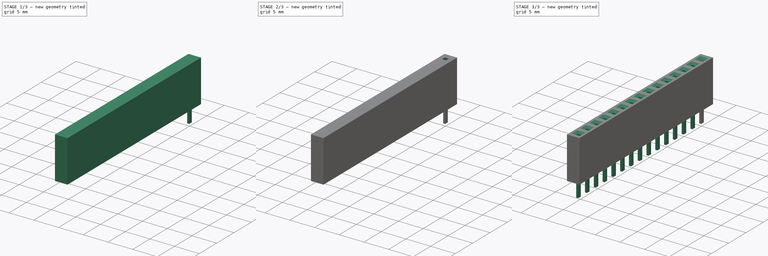
[diagram: build sequence overview — one tinted view per stage of 3, left to right]
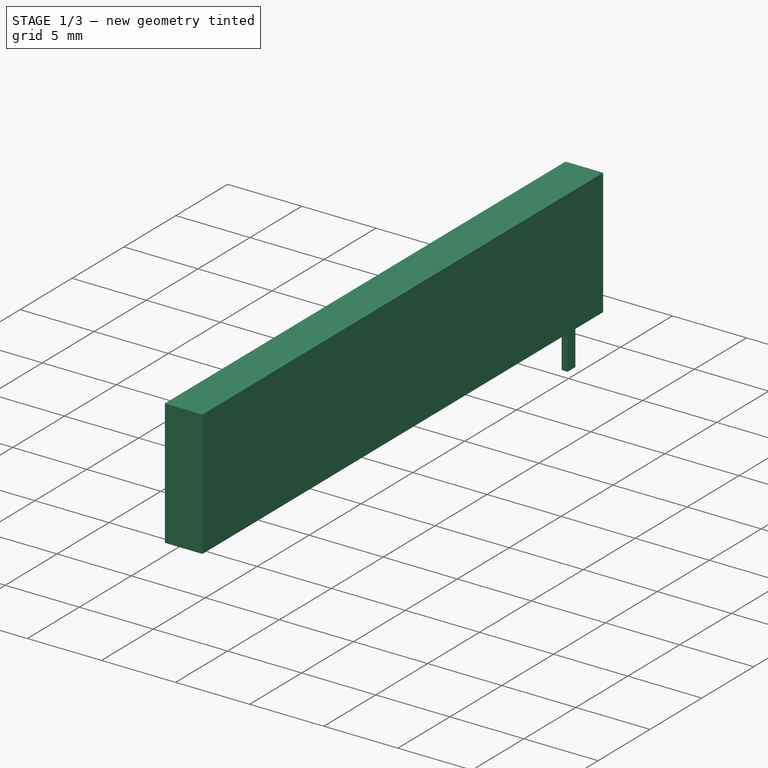
[diagram: stage 1 of 3 — iso view after this stage's code; geometry added in this stage tinted green]
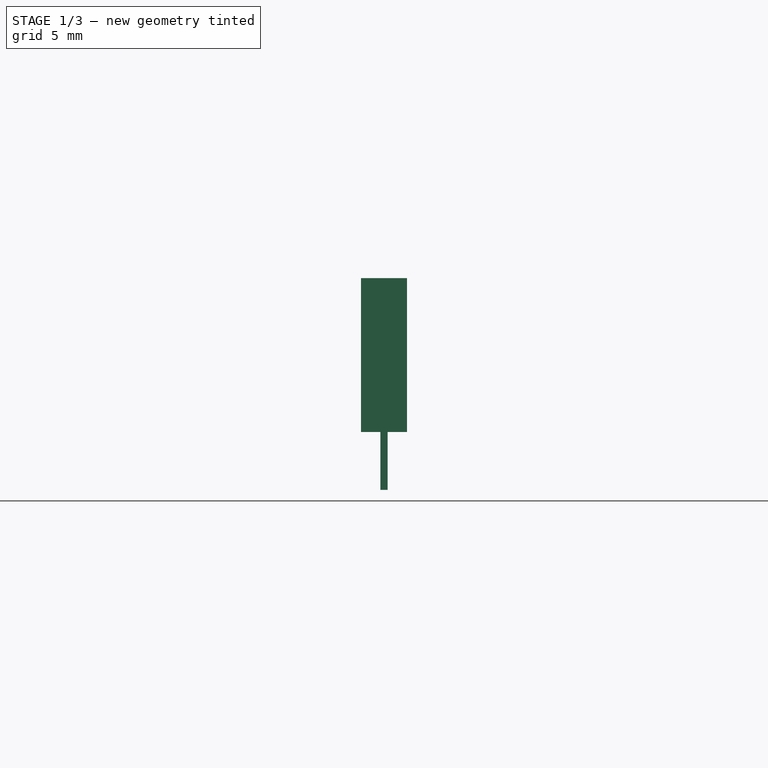
[diagram: stage 1 of 3 — front view after this stage's code; geometry added in this stage tinted green]
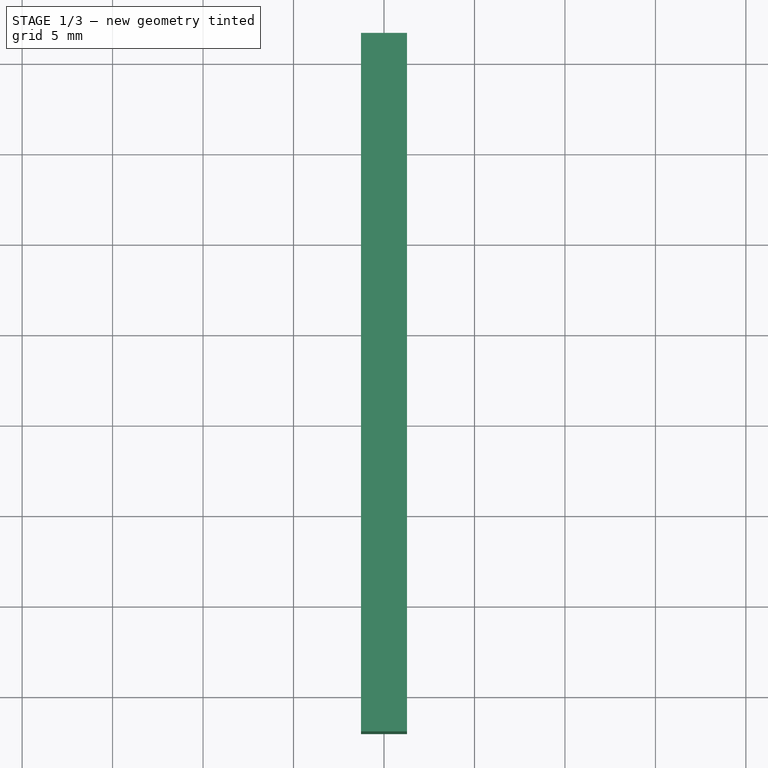
[diagram: stage 1 of 3 — top view after this stage's code; geometry added in this stage tinted green]
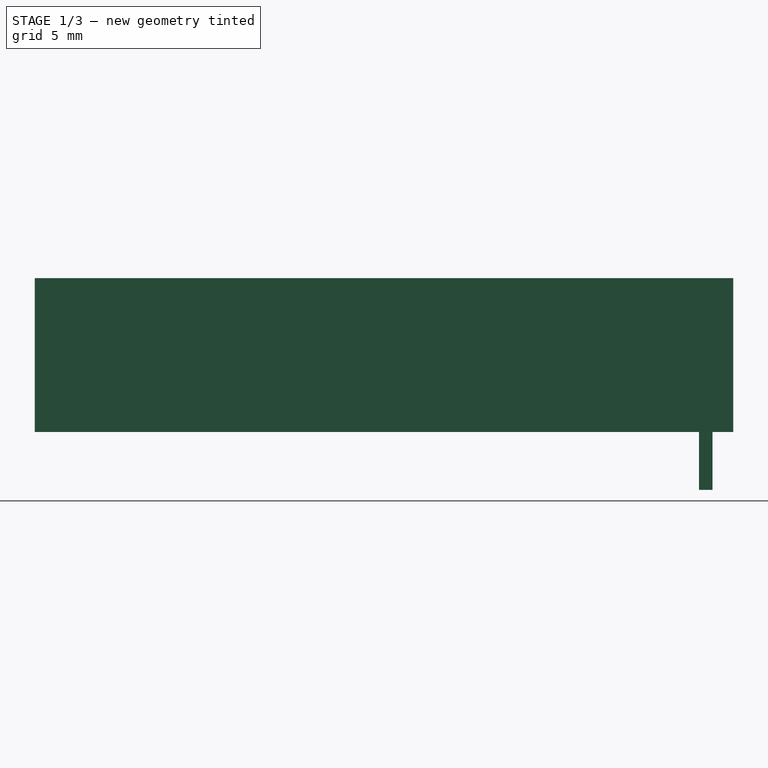
[diagram: stage 1 of 3 — right view after this stage's code; geometry added in this stage tinted green]
FCSTD DOCUMENT  (FreeCAD 0.21R33668 +26 (Git))
Label: PPPC151LFBN-RC
License: All rights reserved
LicenseURL: http://en.wikipedia.org/wiki/All_rights_reserved
objects: Sketcher::SketchObject×3, PartDesign::Pad×2, PartDesign::Pocket×1, PartDesign::Chamfer×1, PartDesign::LinearPattern×1, PartDesign::Body×1
note: 13 computed .brp shape members not serialized (recipe doc carries the construction recipe); baked Part::Feature solids carry a one-line shape summary decoded from their .brp

FEATURE [Sketcher::SketchObject] Sketch
  FullyConstrained = true
  MapMode = 5
  Support = -> [XY_Plane]
  sketch-geometry (4):
    g0: LineSegment StartX=-1.27 StartY=1.524 StartZ=0 EndX=1.27 EndY=1.524 EndZ=0
    g1: LineSegment StartX=1.27 StartY=1.524 StartZ=0 EndX=1.27 EndY=-37.084 EndZ=0
    g2: LineSegment StartX=1.27 StartY=-37.084 StartZ=0 EndX=-1.27 EndY=-37.084 EndZ=0
    g3: LineSegment StartX=-1.27 StartY=-37.084 StartZ=0 EndX=-1.27 EndY=1.524 EndZ=0
  constraints (11):
    c: Coincident(g0,g1)
    c: Coincident(g1,g2)
    c: Coincident(g2,g3)
    c: Coincident(g3,g0)
    c: Horizontal(g2)
    c: Vertical(g1)
    c: Vertical(g3)
    c: Symmetric(g0,g0,g-2)
    c: DistanceY(g-1,g0) = 1.524
    c: DistanceX(g0,g0) = 2.54
    c: DistanceY(g1,g1) = 38.608
FEATURE [PartDesign::Pad] Pad
  Direction = (0,0,1)
  Length = 8.5
  Length2 = 10
  Profile = -> Sketch
  ReferenceAxis = -> Sketch [N_Axis]
  Type = 0
FEATURE [Sketcher::SketchObject] Sketch001
  FullyConstrained = true
  MapMode = 5
  Placement = pos=(0,0,0) rot=(1,0,0;3.14159rad)
  Support = -> [Pad]
  sketch-geometry (4):
    g0: LineSegment StartX=-0.2 StartY=0.375 StartZ=0 EndX=0.2 EndY=0.375 EndZ=0
    g1: LineSegment StartX=0.2 StartY=0.375 StartZ=0 EndX=0.2 EndY=-0.375 EndZ=0
    g2: LineSegment StartX=0.2 StartY=-0.375 StartZ=0 EndX=-0.2 EndY=-0.375 EndZ=0
    g3: LineSegment StartX=-0.2 StartY=-0.375 StartZ=0 EndX=-0.2 EndY=0.375 EndZ=0
  constraints (11):
    c: Coincident(g0,g1)
    c: Coincident(g1,g2)
    c: Coincident(g2,g3)
    c: Coincident(g3,g0)
    c: Horizontal(g0)
    c: Horizontal(g2)
    c: Vertical(g1)
    c: Vertical(g3)
    c: Symmetric(g0,g1,g-1)
    c: DistanceX(g2,g2) = 0.4
    c: DistanceY(g1,g1) = 0.75
FEATURE [PartDesign::Pad] Pad001
  BaseFeature = -> Pad
  Direction = (0,0,-1)
  Length = 3.2
  Length2 = 10
  Profile = -> Sketch001
  ReferenceAxis = -> Sketch001 [N_Axis]
  Type = 0
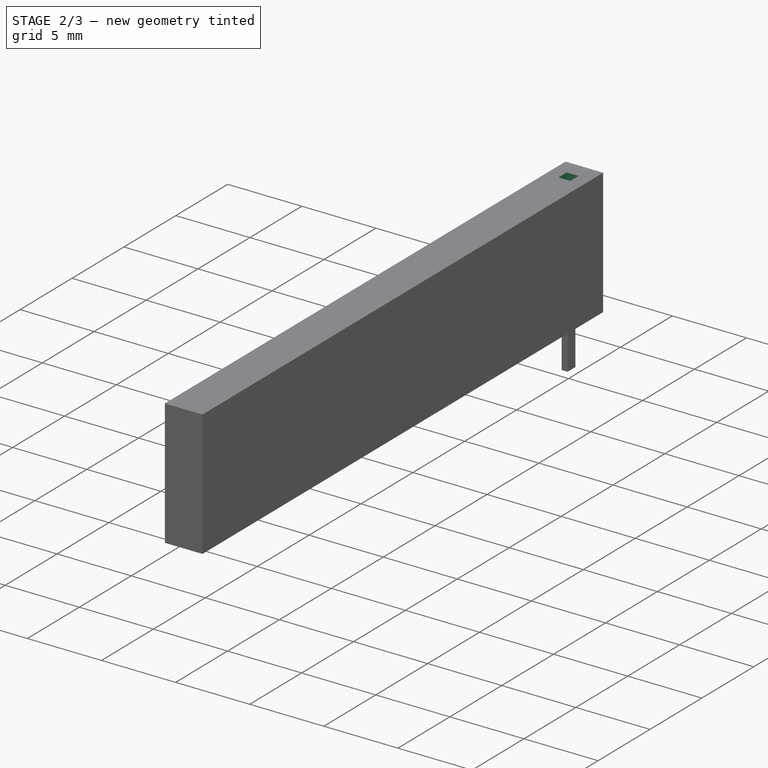
[diagram: stage 2 of 3 — iso view after this stage's code; geometry added in this stage tinted green]
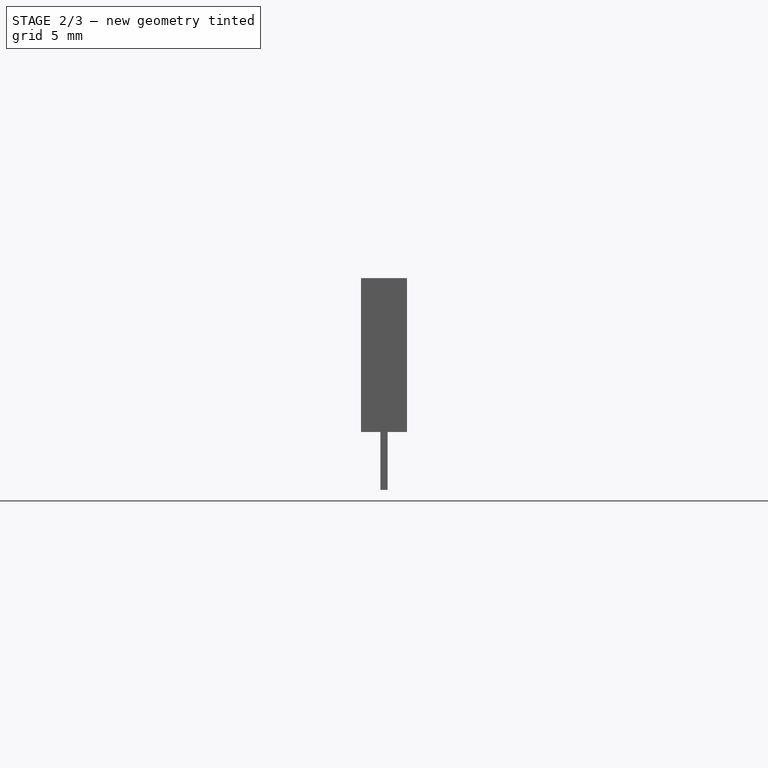
[diagram: stage 2 of 3 — front view after this stage's code; geometry added in this stage tinted green]
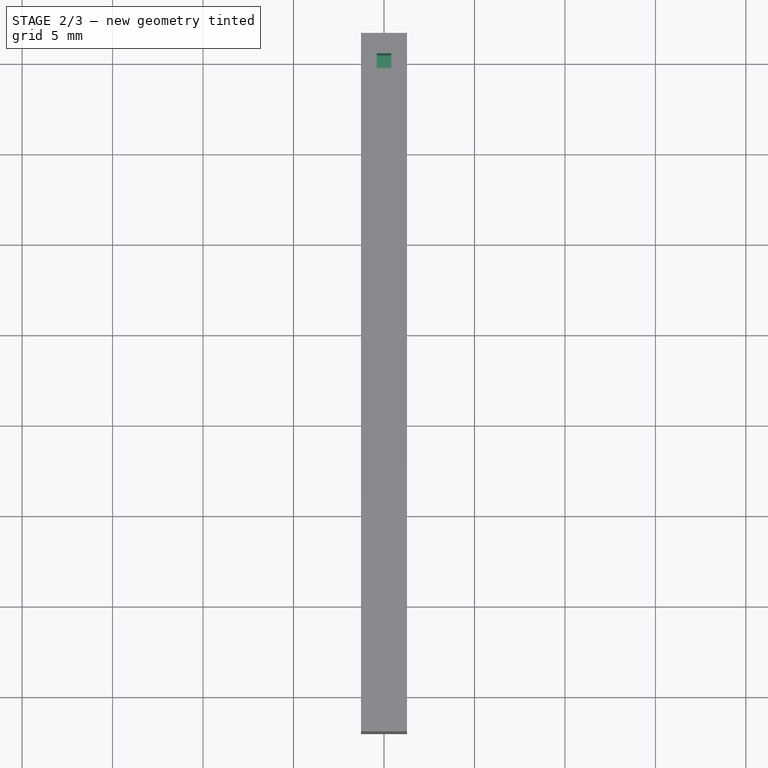
[diagram: stage 2 of 3 — top view after this stage's code; geometry added in this stage tinted green]
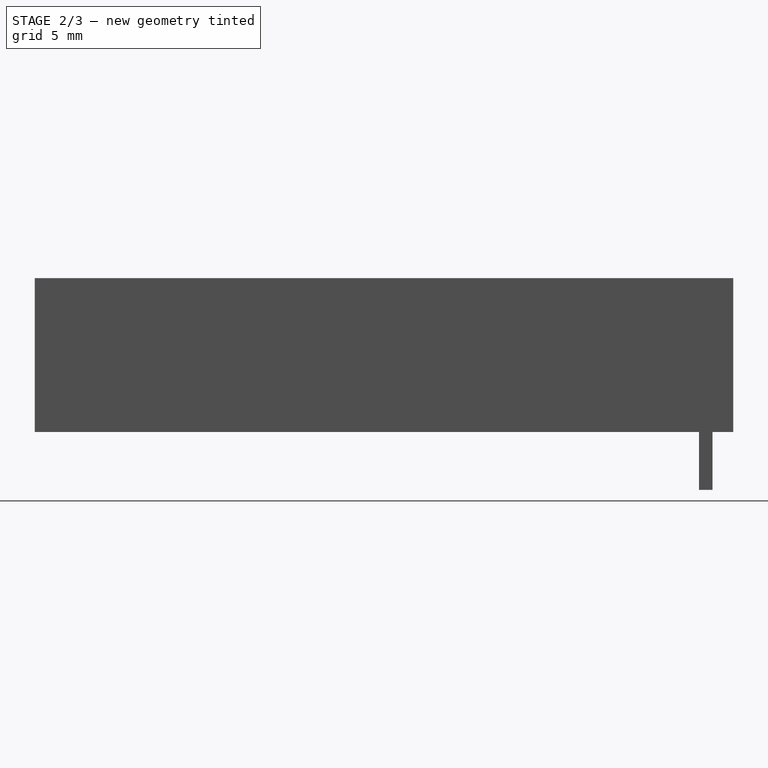
[diagram: stage 2 of 3 — right view after this stage's code; geometry added in this stage tinted green]
FEATURE [Sketcher::SketchObject] Sketch002
  FullyConstrained = true
  MapMode = 5
  Placement = pos=(0,0,8.5) rot=(0,0,1;0rad)
  Support = -> [Pad001]
  sketch-geometry (4):
    g0: LineSegment StartX=-0.4 StartY=0.4 StartZ=0 EndX=0.4 EndY=0.4 EndZ=0
    g1: LineSegment StartX=0.4 StartY=0.4 StartZ=0 EndX=0.4 EndY=-0.4 EndZ=0
    g2: LineSegment StartX=0.4 StartY=-0.4 StartZ=0 EndX=-0.4 EndY=-0.4 EndZ=0
    g3: LineSegment StartX=-0.4 StartY=-0.4 StartZ=0 EndX=-0.4 EndY=0.4 EndZ=0
  constraints (11):
    c: Coincident(g0,g1)
    c: Coincident(g1,g2)
    c: Coincident(g2,g3)
    c: Coincident(g3,g0)
    c: Horizontal(g0)
    c: Horizontal(g2)
    c: Vertical(g1)
    c: Vertical(g3)
    c: Symmetric(g0,g1,g-1)
    c: Equal(g0,g1)
    c: DistanceY(g1,g1) = 0.8
FEATURE [PartDesign::Pocket] Pocket
  BaseFeature = -> Pad001
  Direction = (0,0,-1)
  Length = 7
  Length2 = 5
  Profile = -> Sketch002
  ReferenceAxis = -> Sketch002 [N_Axis]
  Type = 0
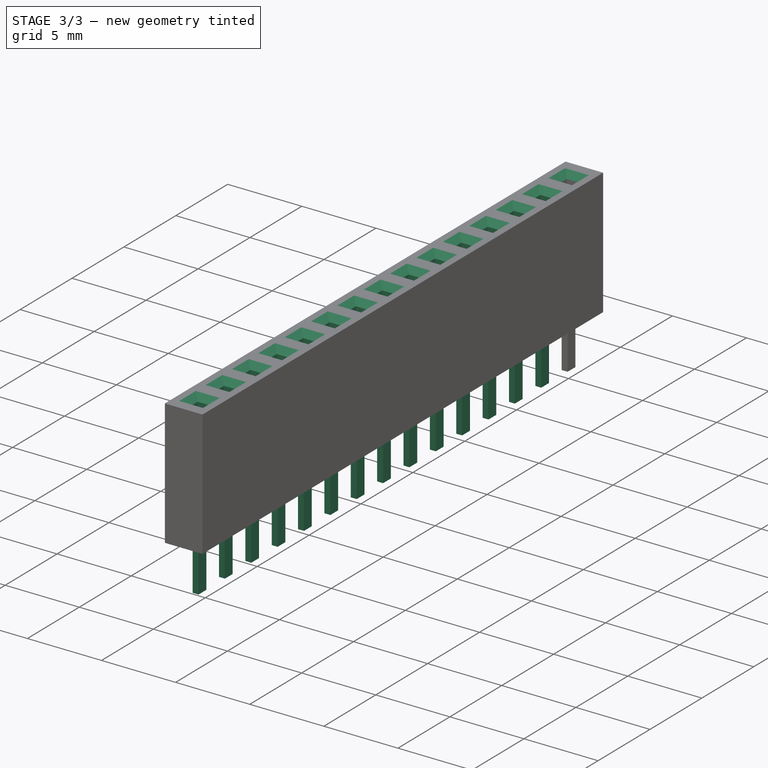
[diagram: stage 3 of 3 — iso view after this stage's code; geometry added in this stage tinted green]
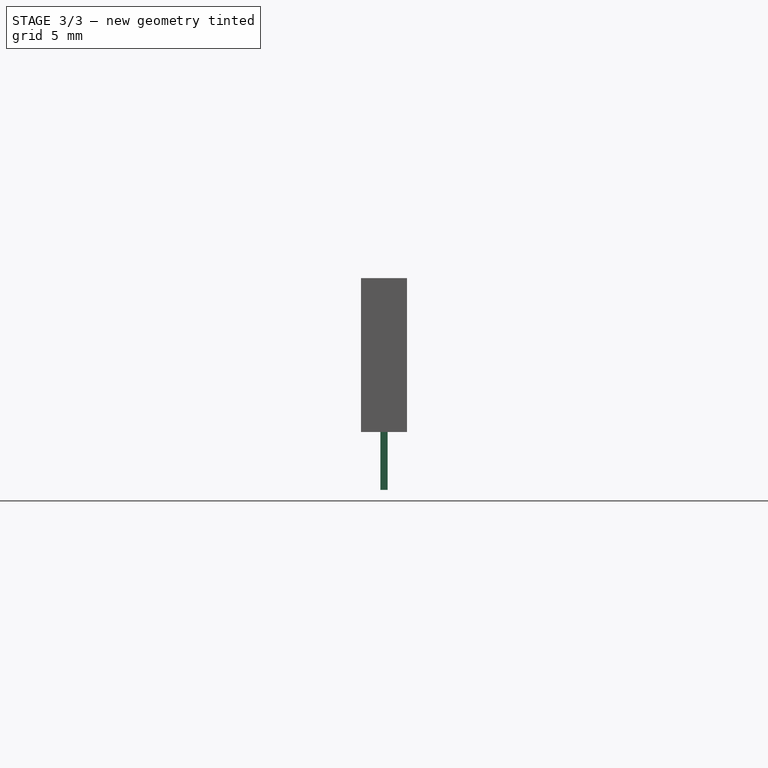
[diagram: stage 3 of 3 — front view after this stage's code; geometry added in this stage tinted green]
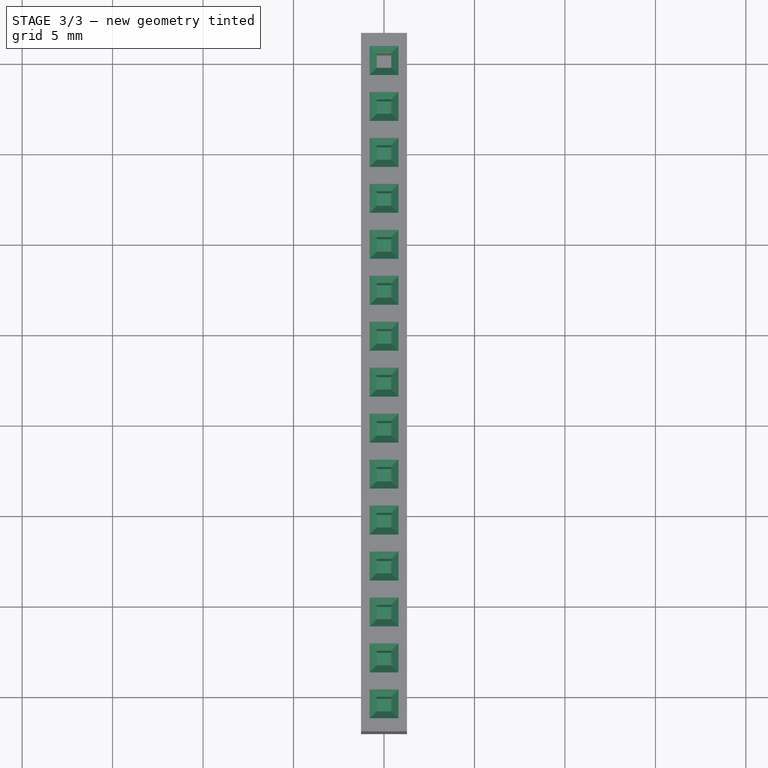
[diagram: stage 3 of 3 — top view after this stage's code; geometry added in this stage tinted green]
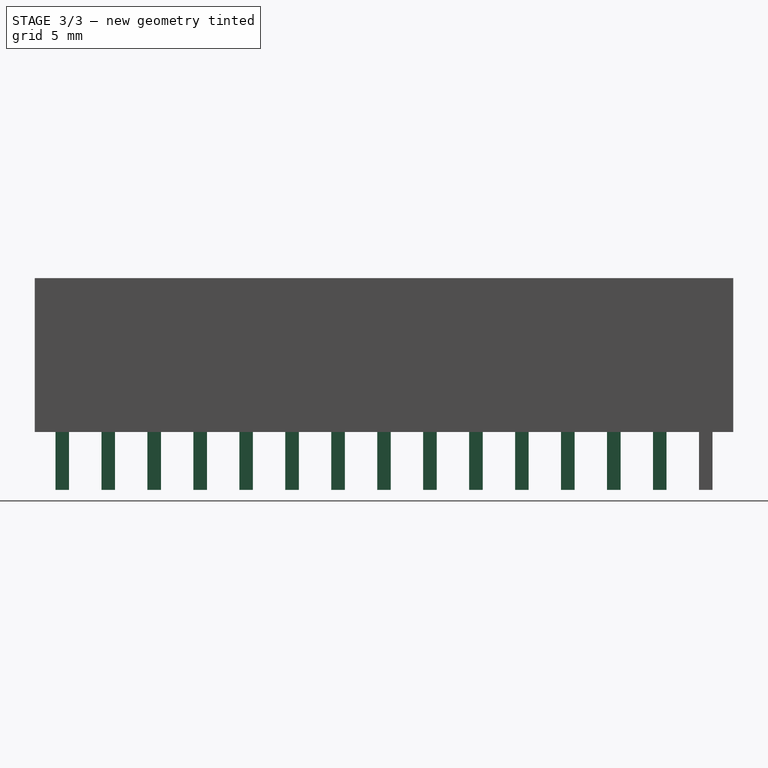
[diagram: stage 3 of 3 — right view after this stage's code; geometry added in this stage tinted green]
FEATURE [PartDesign::Chamfer] Chamfer
  Angle = 45
  Base = -> Pocket [Edge17,Edge20,Edge19,Edge18]
  BaseFeature = -> Pocket
  ChamferType = 0
  FlipDirection = false
  Size = 0.4
  Size2 = 1
  SupportTransform = false
  UseAllEdges = false
FEATURE [PartDesign::LinearPattern] LinearPattern
  BaseFeature = -> Chamfer
  Direction = -> Sketch001 [V_Axis]
  Length = 35.56
  Occurrences = 15
  Originals = -> [Pad001,Pocket,Chamfer]
FEATURE [PartDesign::Body] Body
  Group = -> [Sketch,Pad,Sketch001,Pad001,Sketch002,Pocket,Chamfer,LinearPattern]
  Origin = -> Origin
  Tip = -> LinearPattern
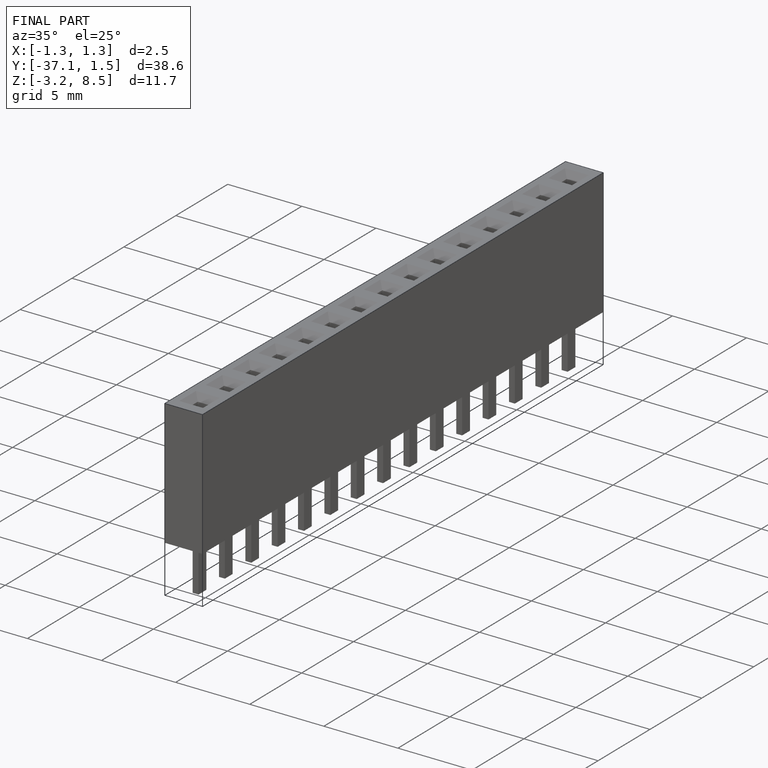
[diagram: finished part — iso view with bounding-box wireframe]
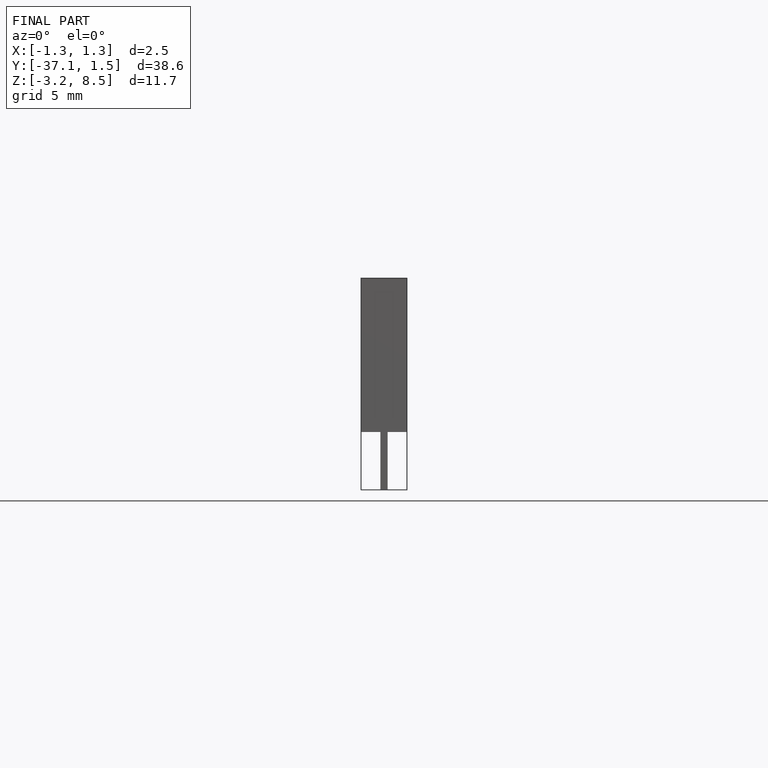
[diagram: finished part — front view with bounding-box wireframe]
